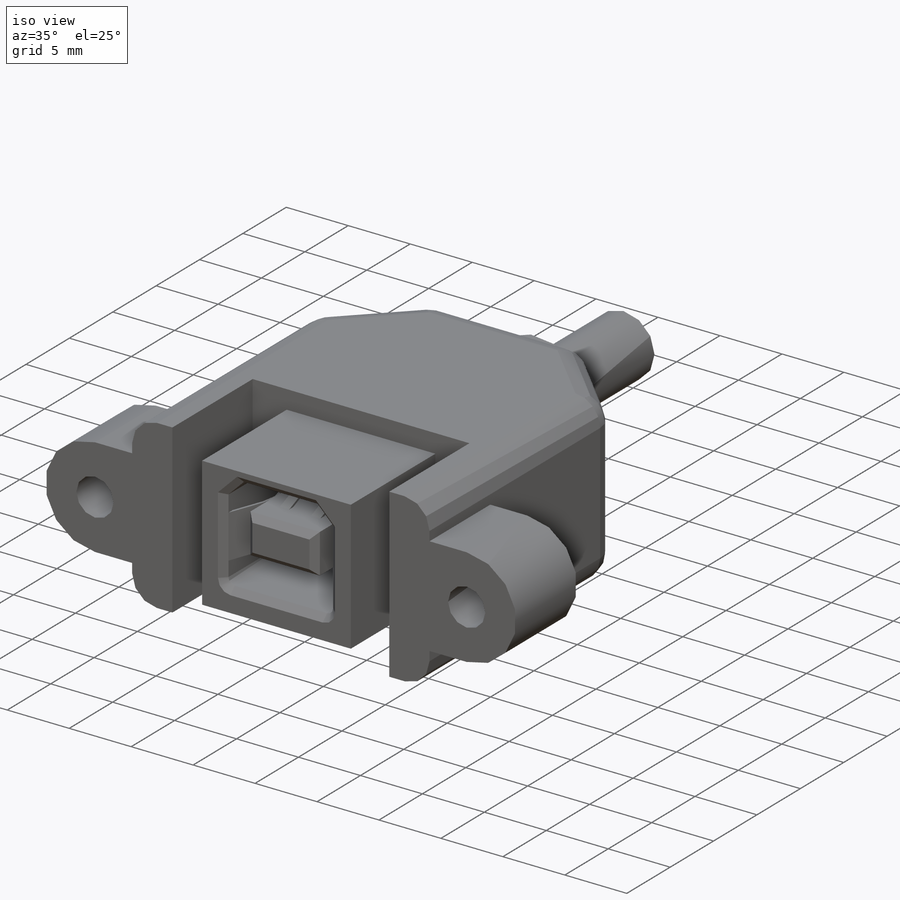
[diagram: iso view]
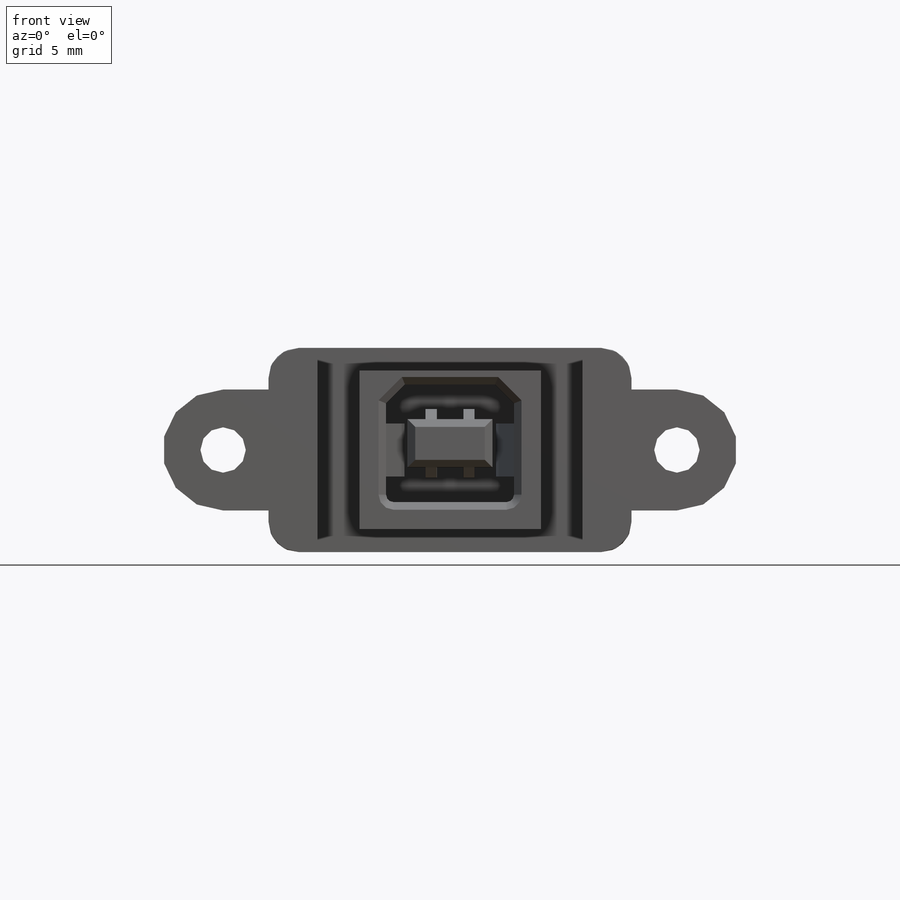
[diagram: front view]
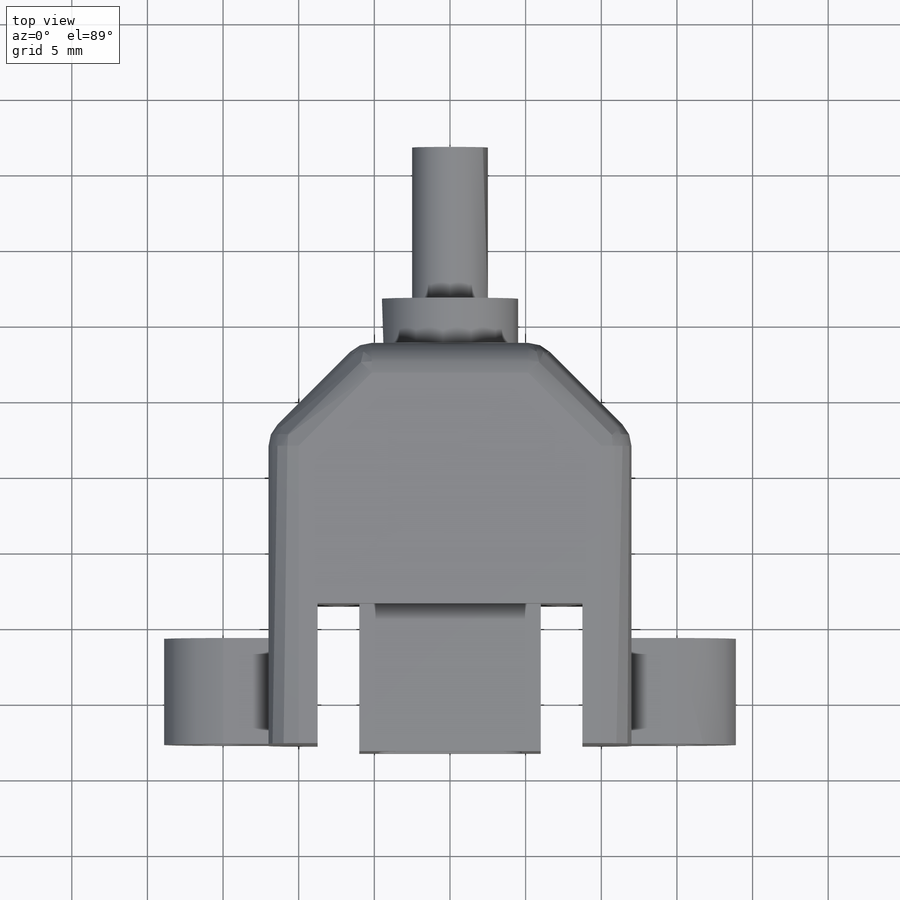
[diagram: top view]
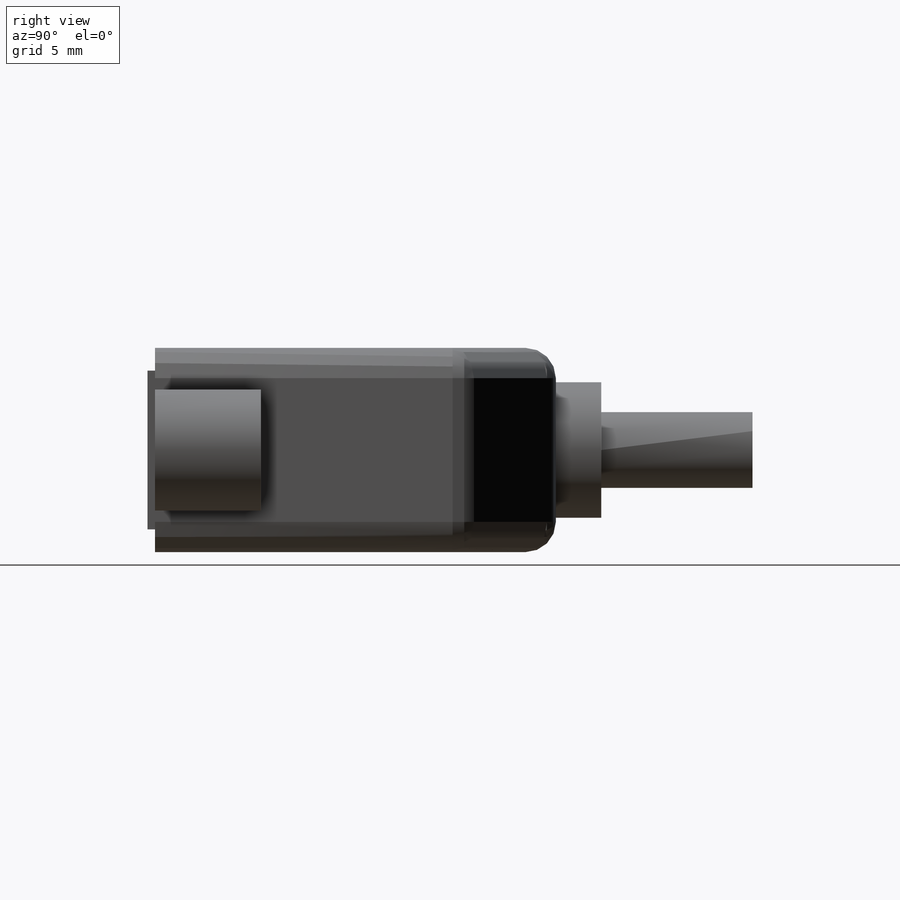
[diagram: right view]
SOLIDWORKS PART (.sldprt)
format: sldprt  version: not decoded by parser v0  size: 631,808 bytes
history: native  units: mm
features: sketch x11, extrude x7, plane x4, cut_extrude x3, chamfer x3, material x1, pattern_linear x1, fillet x1, mirror x1, boolean_combine x1 + 1 further entry (+11 scaffold rows collapsed)
feature tree (45):
  scaffold x11  (default folders/planes/origin — collapsed)
  material  "Material <not specified>"
  "Annotations"  RD1=5.92031mm RD2=3.752144mm
  sketch  "Sketch1"  dims[D1=12.0mm D2=10.5mm]
  extrude  "Base"  Depth=16.5mm
  sketch  "Sketch2"  dims[c1.D1=12.7mm c1.D2=12.7mm c2.D1=0.5mm c2.D3=12.7mm c2.D4=31.75mm c3.D3=8.45mm c3.D5=197.612mm c3.D6=144.526mm c3.D9=31.75mm c4.D5=7.78mm c4.D2=4.81mm]
  cut_extrude  "Contact Opening"  Depth=9mm
  chamfer  "Contact Opening Lead-in"  Distance=0.5mm Angle=45deg
  sketch  "Sketch3"  dims[D1=5.6mm D2=3.18mm D3=4.81mm]
  extrude  "Contact Area"  Depth=8.5mm
  chamfer  "Contact Area Lead-in"  Distance=0.5mm Angle=45deg
  plane  "Ground Leg Plane"  Offset=10.4mm
  sketch  "Sketch4"  dims[c1.D2=1.0mm c1.D3=25.4mm c1.D5=31.75mm c1.D6=25.4mm c2.D2=0.75mm c2.D3=1.25mm c2.D7=1.25mm c2.D4=1.25mm c2.D1=0.15mm c3.D4=3.72mm c3.D5=317.5mm c3.D6=378.46mm c3.D1=0.2mm c4.D4=2.5mm c4.D5=3.72mm c4.D6=12.5mm c4.D7=14.9mm c5.D4=14.9mm c5.D7=2.15mm c5.D6=12.5mm c5.D2=~6.669967mm c5.D3=0.3mm c5.D1=10.6mm c6.D2=8.1mm c6.D8=0.38mm c6.D9=0.38mm]
  sketch  "Sketch7"  dims[c1.D2=3.0mm c1.D5=3.0mm c1.D1=5.85mm c1.D3=1.8mm c1.D4=0.53mm c2.D5=3.75mm c2.D6=0.175mm]
  extrude  "Holding Tines"  Depth=3.5mm
  plane  "Tail Plane"  Offset=0.85mm
  plane  "Contact Plane"  Offset=1.25mm
  plane  "SM TAILS PLANE"  Offset=0.75mm
  sketch  "Sketch8"  dims[c1.D2=3.0mm c1.D3=3.0mm c1.D4=3.0mm c1.D1=6.5mm c2.D3=2.3mm c2.D4=4.0mm c2.D5=0.1mm c2.D6=0.175mm]
  extrude  "Contact"  Depth=0.75mm
  pattern_linear  "Contact Pattern"  Count1=2 Count2=1 Spacing1=2.5mm Spacing2=50mm
  sketch  "Sketch16"  dims[D1=9.75mm D2=17.5mm D3=27.0mm D4=0.5mm D5=10.25mm D6=7.0mm D7=24.0mm]
  extrude  "Boss-Extrude1"  Depth=13.5mm
  chamfer  "Chamfer1"  Distance=6mm Angle=45deg
  sketch  "Sketch17"  dims[D2=3.0mm D1=15.0mm]
  cut_extrude  "Cut-Extrude1"  [1 undecoded]
  sketch  "Sketch18"  dims[D1=3.2mm]
  cut_extrude  "Cut-Extrude2"  [1 undecoded]
  fillet  "Fillet1"  Radius=2mm
  mirror  "Mirror1"
  sketch  "Sketch20"  dims[D1=9.0mm]
  extrude  "Boss-Extrude2"  Depth=3mm
  sketch  "Sketch21"  dims[D1=5.0mm]
  extrude  "Boss-Extrude3"  Depth=10mm
  boolean_combine  "Combine1"
decode coverage: 24 of 28 modeling features carry decoded parameters; 1 rows unclassified (native names shown)
note: ~ marks probable driven/reference dimensions
note: 2 parameter values undecoded
note: suppression state not decoded; provenance and decode notes live in map.json
